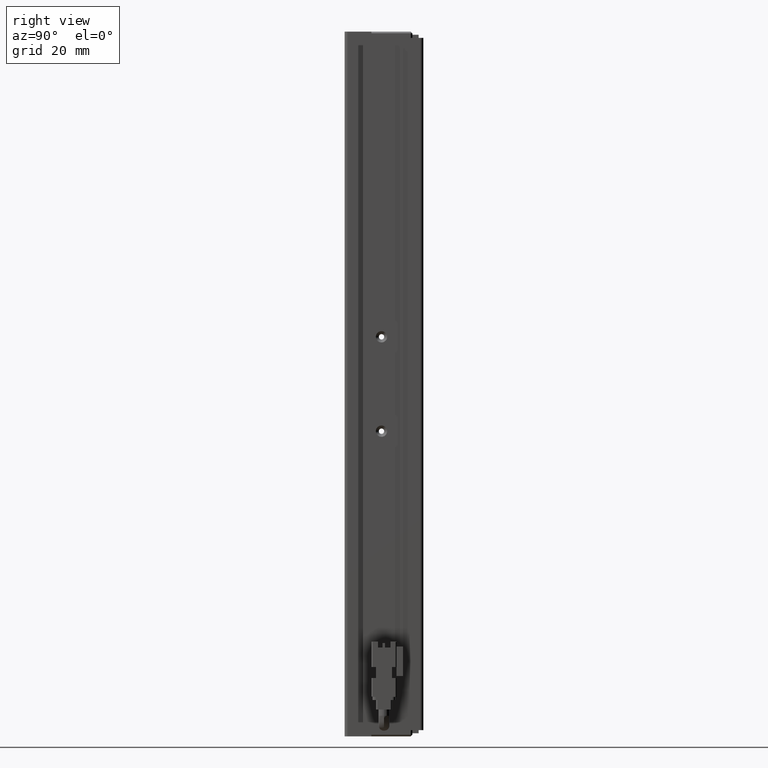
[diagram: clean part render]
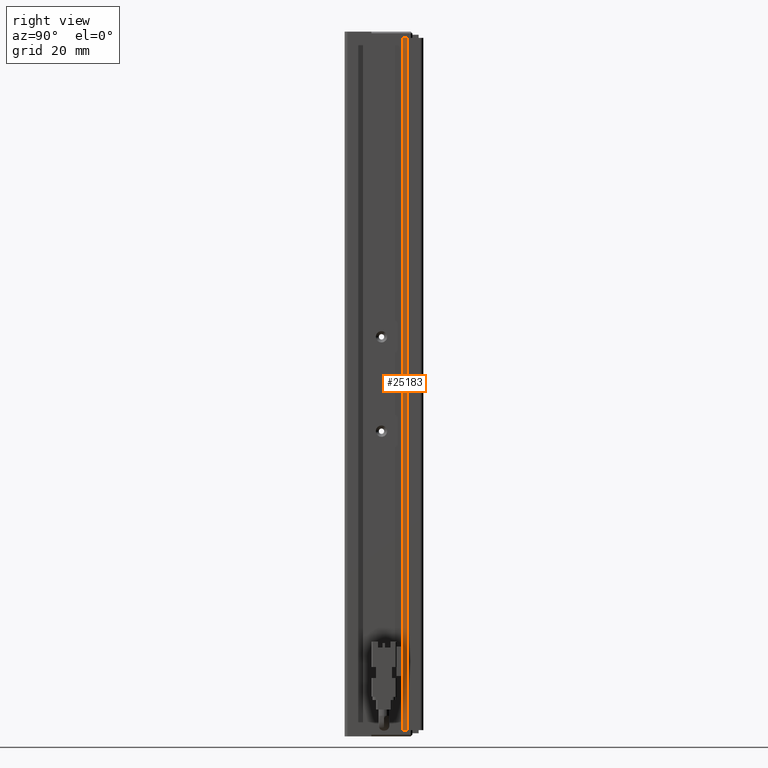
[diagram: same view with one face highlighted and labeled with its STEP entity id]
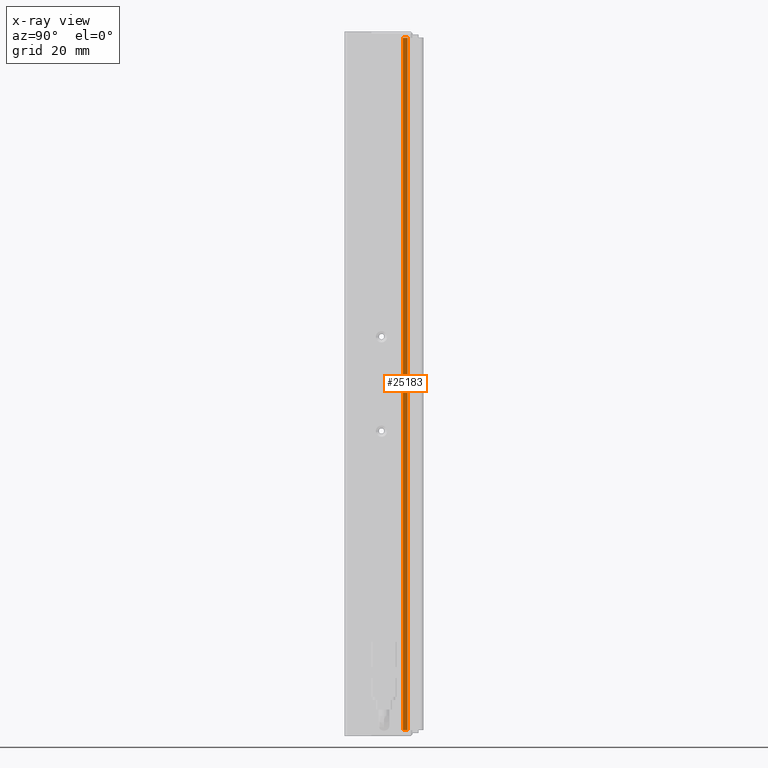
[diagram: x-ray of the same camera — body ghosted, the highlighted face saturated]
A machine part, right view. The second image highlights one B-rep face of the part: STEP entity #25183.
The next image is the same camera in x-ray: the body ghosted, the highlighted face saturated — about 0% of this face is hidden behind the body in this view.
In plain terms, the highlighted planar face has unit normal (1, 0, -0).
Its self-contained STEP definition (entity closure, byte-faithful):
#868 = AXIS2_PLACEMENT_3D ( 'NONE', #37108, #14278, #40900 ) ;
#5498 = ORIENTED_EDGE ( 'NONE', *, *, #28830, .F. ) ;
#6406 = VECTOR ( 'NONE', #35663, 1000.000000000000000 ) ;
#6820 = VERTEX_POINT ( 'NONE', #10506 ) ;
#7673 = VERTEX_POINT ( 'NONE', #42528 ) ;
#9583 = VECTOR ( 'NONE', #24544, 1000.000000000000000 ) ;
#10506 = CARTESIAN_POINT ( 'NONE',  ( 55.42537974683542500, 30.69594479660386800, -5.000000000000004400 ) ) ;
#12088 = CARTESIAN_POINT ( 'NONE',  ( 55.42537974683542500, 7.083797468354437600, -225.0000000000000000 ) ) ;
#12811 = CARTESIAN_POINT ( 'NONE',  ( 55.42537974683542500, 30.69594479660386800, -3.000000000000002700 ) ) ;
#14278 = DIRECTION ( 'NONE',  ( 1.000000000000000000, 0.0000000000000000000, -0.0000000000000000000 ) ) ;
#14434 = LINE ( 'NONE', #17782, #28722 ) ;
#17390 = FACE_OUTER_BOUND ( 'NONE', #18496, .T. ) ;
#17665 = VECTOR ( 'NONE', #38778, 1000.000000000000000 ) ;
#17782 = CARTESIAN_POINT ( 'NONE',  ( 55.42537974683542500, 7.083797468354437600, -5.000000000000004400 ) ) ;
#18496 = EDGE_LOOP ( 'NONE', ( #46892, #5498, #44601, #20851 ) ) ;
#18844 = LINE ( 'NONE', #12088, #17665 ) ;
#20851 = ORIENTED_EDGE ( 'NONE', *, *, #48176, .T. ) ;
#23628 = EDGE_CURVE ( 'NONE', #48055, #7673, #18844, .T. ) ;
#24544 = DIRECTION ( 'NONE',  ( -0.0000000000000000000, 0.0000000000000000000, -1.000000000000000000 ) ) ;
#25136 = EDGE_CURVE ( 'NONE', #6820, #40327, #14434, .T. ) ;
#25183 = ADVANCED_FACE ( 'NONE', ( #17390 ), #44566, .T. ) ;
#28722 = VECTOR ( 'NONE', #48227, 1000.000000000000000 ) ;
#28830 = EDGE_CURVE ( 'NONE', #6820, #7673, #45666, .T. ) ;
#35663 = DIRECTION ( 'NONE',  ( 0.0000000000000000000, -0.0000000000000000000, -1.000000000000000000 ) ) ;
#37108 = CARTESIAN_POINT ( 'NONE',  ( 55.42537974683542500, 7.083797468354437600, -3.000000000000002700 ) ) ;
#38778 = DIRECTION ( 'NONE',  ( 0.0000000000000000000, 1.000000000000000000, 0.0000000000000000000 ) ) ;
#39960 = LINE ( 'NONE', #43511, #9583 ) ;
#40327 = VERTEX_POINT ( 'NONE', #48495 ) ;
#40900 = DIRECTION ( 'NONE',  ( -0.0000000000000000000, 0.0000000000000000000, -1.000000000000000000 ) ) ;
#42528 = CARTESIAN_POINT ( 'NONE',  ( 55.42537974683542500, 30.69594479660386800, -225.0000000000000000 ) ) ;
#43511 = CARTESIAN_POINT ( 'NONE',  ( 55.42537974683542500, 29.19594479660387200, -3.000000000000002700 ) ) ;
#44566 = PLANE ( 'NONE',  #868 ) ;
#44601 = ORIENTED_EDGE ( 'NONE', *, *, #25136, .T. ) ;
#45666 = LINE ( 'NONE', #12811, #6406 ) ;
#46671 = CARTESIAN_POINT ( 'NONE',  ( 55.42537974683542500, 29.19594479660387500, -225.0000000000000000 ) ) ;
#46892 = ORIENTED_EDGE ( 'NONE', *, *, #23628, .T. ) ;
#48055 = VERTEX_POINT ( 'NONE', #46671 ) ;
#48176 = EDGE_CURVE ( 'NONE', #40327, #48055, #39960, .T. ) ;
#48227 = DIRECTION ( 'NONE',  ( -0.0000000000000000000, -1.000000000000000000, -0.0000000000000000000 ) ) ;
#48495 = CARTESIAN_POINT ( 'NONE',  ( 55.42537974683542500, 29.19594479660387500, -5.000000000000004400 ) ) ;